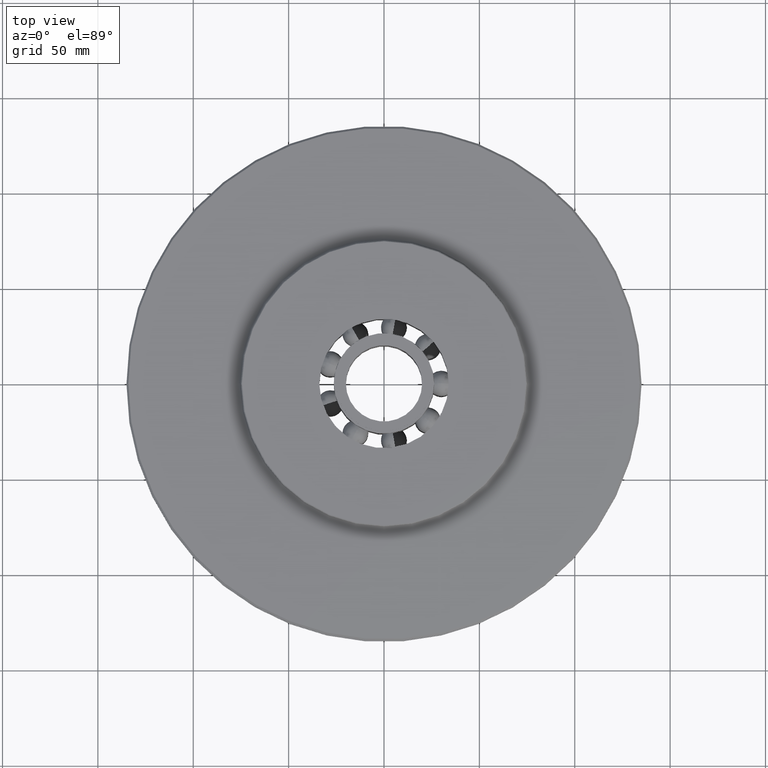
[diagram: clean part render]
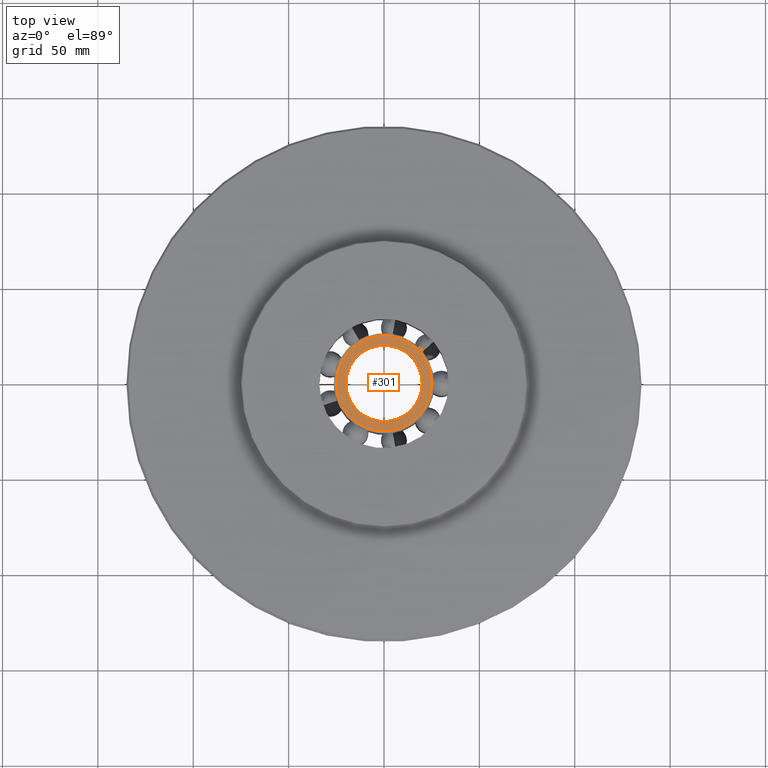
[diagram: same view with one face highlighted and labeled with its STEP entity id]
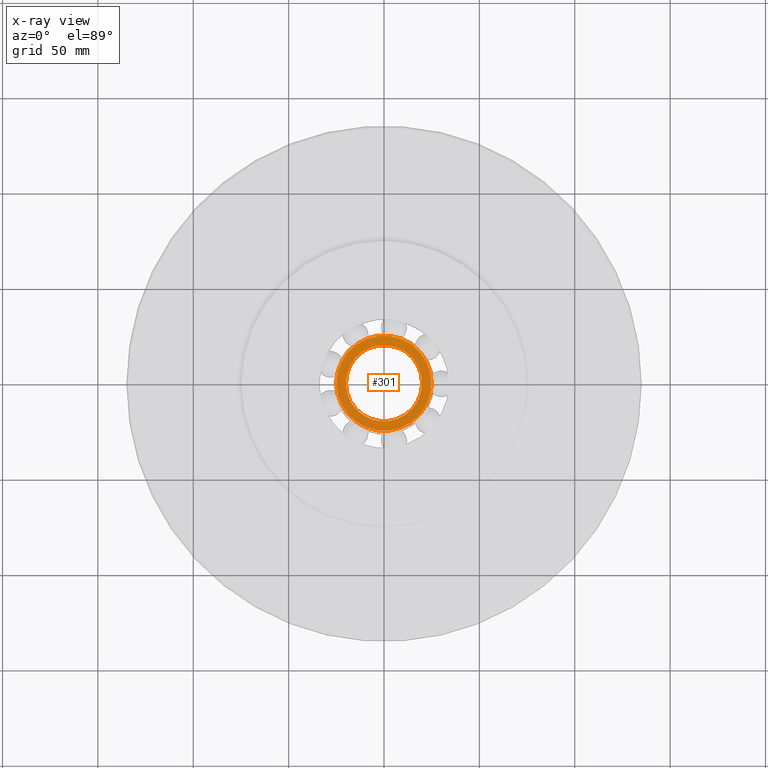
[diagram: x-ray of the same camera — body ghosted, the highlighted face saturated]
A machine part, top view. The second image highlights one B-rep face of the part: STEP entity #301.
The next image is the same camera in x-ray: the body ghosted, the highlighted face saturated — about 0% of this face is hidden behind the body in this view.
In plain terms, the highlighted planar face has unit normal (0, 0, 1).
Its self-contained STEP definition (entity closure, byte-faithful):
#301=ADVANCED_FACE('',(#673,#674),#675,.T.);
#673=FACE_BOUND('',#1123,.T.);
#674=FACE_OUTER_BOUND('',#1124,.T.);
#675=PLANE('',#1125);
#1123=EDGE_LOOP('',(#2073,#2074));
#1124=EDGE_LOOP('',(#2075,#2076));
#1125=AXIS2_PLACEMENT_3D('',#2077,#2078,#2079);
#2073=ORIENTED_EDGE('',*,*,#3248,.T.);
#2074=ORIENTED_EDGE('',*,*,#3103,.T.);
#2075=ORIENTED_EDGE('',*,*,#3233,.T.);
#2076=ORIENTED_EDGE('',*,*,#3245,.T.);
#2077=CARTESIAN_POINT('',(0.0,0.0,20.25));
#2078=DIRECTION('',(0.0,0.0,1.0));
#2079=DIRECTION('',(1.0,0.0,0.0));
#3103=EDGE_CURVE('',#3894,#3891,#3895,.T.);
#3233=EDGE_CURVE('',#4108,#4112,#4114,.T.);
#3245=EDGE_CURVE('',#4112,#4108,#4130,.T.);
#3248=EDGE_CURVE('',#3891,#3894,#4133,.T.);
#3891=VERTEX_POINT('',#7486);
#3894=VERTEX_POINT('',#7490);
#3895=CIRCLE('',#7491,20.0);
#4108=VERTEX_POINT('',#8863);
#4112=VERTEX_POINT('',#8868);
#4114=CIRCLE('',#8871,25.0);
#4130=CIRCLE('',#8889,25.0);
#4133=CIRCLE('',#8892,20.0);
#7486=CARTESIAN_POINT('',(20.0,0.0,20.25));
#7490=CARTESIAN_POINT('',(-20.0,2.44929359829471E-015,20.25));
#7491=AXIS2_PLACEMENT_3D('',#10820,#10821,#10822);
#8863=CARTESIAN_POINT('',(25.0,0.0,20.25));
#8868=CARTESIAN_POINT('',(-25.0,3.06161699786838E-015,20.25));
#8871=AXIS2_PLACEMENT_3D('',#10985,#10986,#10987);
#8889=AXIS2_PLACEMENT_3D('',#11005,#11006,#11007);
#8892=AXIS2_PLACEMENT_3D('',#11011,#11012,#11013);
#10820=CARTESIAN_POINT('',(0.0,0.0,20.25));
#10821=DIRECTION('',(0.0,0.0,-1.0));
#10822=DIRECTION('',(1.0,0.0,0.0));
#10985=CARTESIAN_POINT('',(0.0,0.0,20.25));
#10986=DIRECTION('',(0.0,0.0,1.0));
#10987=DIRECTION('',(1.0,0.0,0.0));
#11005=CARTESIAN_POINT('',(0.0,0.0,20.25));
#11006=DIRECTION('',(0.0,0.0,1.0));
#11007=DIRECTION('',(1.0,0.0,0.0));
#11011=CARTESIAN_POINT('',(0.0,0.0,20.25));
#11012=DIRECTION('',(0.0,0.0,-1.0));
#11013=DIRECTION('',(1.0,0.0,0.0));